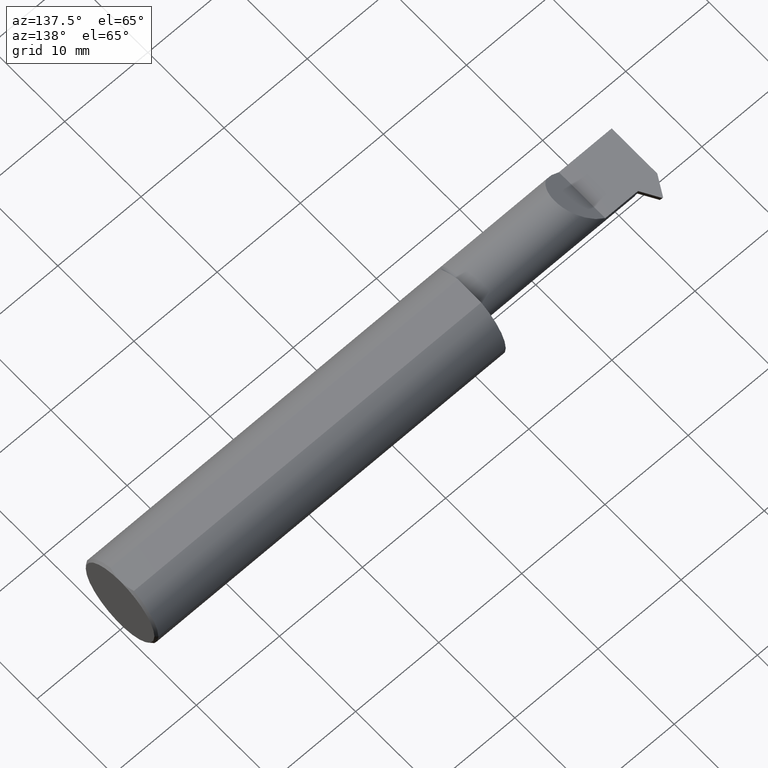
[diagram: clean part render]
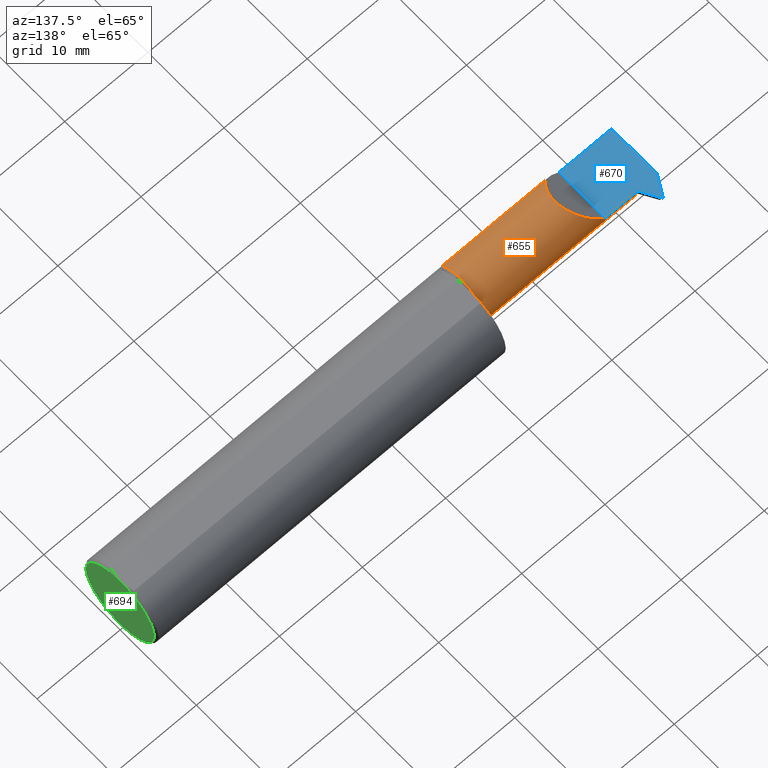
[diagram: same view with three faces highlighted in distinct colors, each labeled with its STEP entity id]
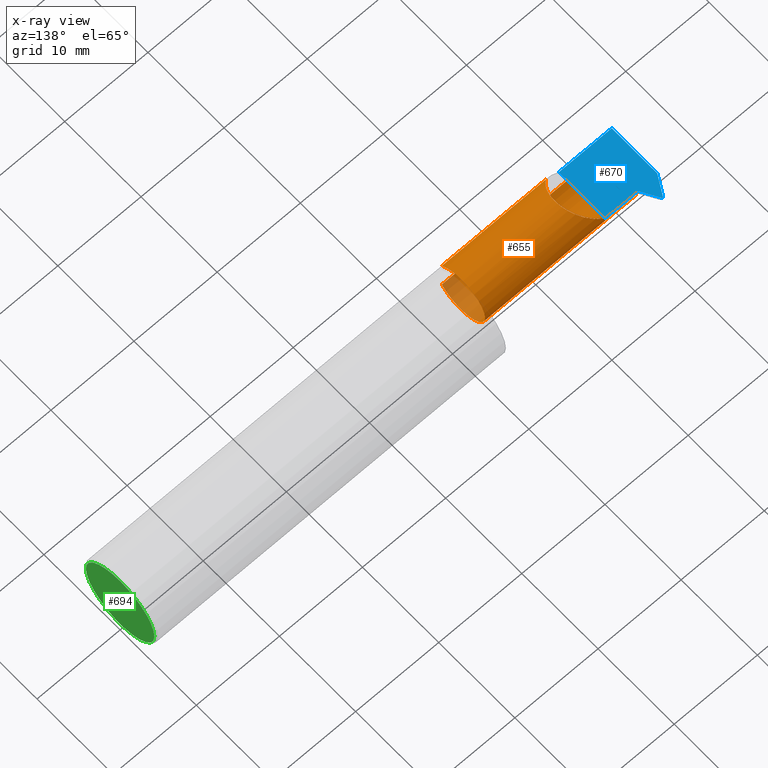
[diagram: x-ray of the same camera — body ghosted, the three highlighted faces saturated]
A machine part, auxiliary view with three faces highlighted in distinct colors.
The next image is the same camera in x-ray (body ghosted, the three faces saturated) — at least one of them is partly hidden behind the body in this view.
Their STEP definitions:

[orange] entity #655 — the highlighted cylindrical surface (edge-blend (fillet) strip) has radius 3.175 mm, axis along (-1, 0, -0).
#11 = EDGE_CURVE ( 'NONE', #196, #712, #334, .T. ) ;
#13 = DIRECTION ( 'NONE',  ( -1.000000000000000000, 7.807390513315893590E-17, -0.000000000000000000 ) ) ;
#17 = CARTESIAN_POINT ( 'NONE',  ( -2.399466679003209091, 0.05264999999999994684, 0.000000000000000000 ) ) ;
#77 = CARTESIAN_POINT ( 'NONE',  ( -2.396040671537939648, 0.05265000000000024521, -0.01683936468141946502 ) ) ;
#85 = EDGE_CURVE ( 'NONE', #137, #571, #839, .T. ) ;
#102 = DIRECTION ( 'NONE',  ( -1.000000000000000000, 7.807390513315893590E-17, -0.000000000000000000 ) ) ;
#107 = CARTESIAN_POINT ( 'NONE',  ( -2.500000000000000000, -0.03467546208265587931, -0.1191873701057065138 ) ) ;
#111 = ORIENTED_EDGE ( 'NONE', *, *, #85, .F. ) ;
#115 = ORIENTED_EDGE ( 'NONE', *, *, #353, .F. ) ;
#122 = ORIENTED_EDGE ( 'NONE', *, *, #344, .T. ) ;
#123 = FACE_OUTER_BOUND ( 'NONE', #687, .T. ) ;
#137 = VERTEX_POINT ( 'NONE', #483 ) ;
#146 = CARTESIAN_POINT ( 'NONE',  ( -2.250000000000000000, 0.05265000000000022440, 0.000000000000000000 ) ) ;
#148 = AXIS2_PLACEMENT_3D ( 'NONE', #384, #102, #779 ) ;
#164 = DIRECTION ( 'NONE',  ( -1.000000000000000000, 7.807390513315893590E-17, -0.000000000000000000 ) ) ;
#182 = LINE ( 'NONE', #728, #710 ) ;
#196 = VERTEX_POINT ( 'NONE', #17 ) ;
#198 = AXIS2_PLACEMENT_3D ( 'NONE', #736, #819, #257 ) ;
#210 = CARTESIAN_POINT ( 'NONE',  ( -2.389529785684763041, 0.04271310668155375856, -0.04884139106116385659 ) ) ;
#217 = VECTOR ( 'NONE', #448, 39.37007874015748143 ) ;
#219 = LINE ( 'NONE', #363, #595 ) ;
#234 = CARTESIAN_POINT ( 'NONE',  ( -2.399165208596790499, 0.04271310668155458429, -0.04884139106116149043 ) ) ;
#239 = EDGE_CURVE ( 'NONE', #267, #752, #436, .T. ) ;
#241 = CARTESIAN_POINT ( 'NONE',  ( -2.039733339501604625, -0.1707639599170687750, 0.07706940050007952958 ) ) ;
#257 = DIRECTION ( 'NONE',  ( 0.000000000000000000, -1.775701195881767246E-15, 1.000000000000000000 ) ) ;
#260 = ORIENTED_EDGE ( 'NONE', *, *, #496, .T. ) ;
#261 = CARTESIAN_POINT ( 'NONE',  ( -2.500000000000000000, -0.07235000000000005316, 0.000000000000000000 ) ) ;
#267 = VERTEX_POINT ( 'NONE', #834 ) ;
#275 = CARTESIAN_POINT ( 'NONE',  ( -2.399466679003209091, 0.05264999999999994684, 0.000000000000000000 ) ) ;
#303 = CARTESIAN_POINT ( 'NONE',  ( -2.500000000000000000, -0.07235000000000006704, 0.000000000000000000 ) ) ;
#307 = CARTESIAN_POINT ( 'NONE',  ( -2.250000000000000000, 0.05265000000000022440, 0.000000000000000000 ) ) ;
#317 = EDGE_CURVE ( 'NONE', #464, #571, #426, .T. ) ;
#334 =( BOUNDED_CURVE ( )  B_SPLINE_CURVE ( 3, ( #275, #77, #425, #210 ),
 .UNSPECIFIED., .F., .F. ) 
 B_SPLINE_CURVE_WITH_KNOTS ( ( 4, 4 ),
 ( 1.570796326794896780, 1.972222054753630660 ),
 .UNSPECIFIED. ) 
 CURVE ( )  GEOMETRIC_REPRESENTATION_ITEM ( )  RATIONAL_B_SPLINE_CURVE ( ( 1.000000000000000000, 0.9866164697472170619, 0.9866164697472170619, 1.000000000000000000 ) ) 
 REPRESENTATION_ITEM ( '' )  );
#344 = EDGE_CURVE ( 'NONE', #196, #464, #355, .T. ) ;
#351 = ORIENTED_EDGE ( 'NONE', *, *, #11, .F. ) ;
#353 = EDGE_CURVE ( 'NONE', #439, #731, #219, .T. ) ;
#355 = LINE ( 'NONE', #428, #735 ) ;
#359 = CARTESIAN_POINT ( 'NONE',  ( -2.060312847100502331, -0.08257136335451466247, 0.1896871528994956146 ) ) ;
#363 = CARTESIAN_POINT ( 'NONE',  ( -2.039733339501604625, -0.1707639599170687750, -0.07706940050007952958 ) ) ;
#378 = ORIENTED_EDGE ( 'NONE', *, *, #572, .T. ) ;
#384 = CARTESIAN_POINT ( 'NONE',  ( -1.680000000000000160, -0.07235000000000010867, 0.000000000000000000 ) ) ;
#389 = CIRCLE ( 'NONE', #503, 0.1250000000000000278 ) ;
#397 = ORIENTED_EDGE ( 'NONE', *, *, #617, .F. ) ;
#408 = CARTESIAN_POINT ( 'NONE',  ( -2.300000000000000266, -0.07235000000000015030, -0.1250000000000000000 ) ) ;
#425 = CARTESIAN_POINT ( 'NONE',  ( -2.392683442184507570, 0.04929277064656741730, -0.03334067414286177172 ) ) ;
#426 =( BOUNDED_CURVE ( )  B_SPLINE_CURVE ( 3, ( #146, #826, #359, #501 ),
 .UNSPECIFIED., .F., .T. ) 
 B_SPLINE_CURVE_WITH_KNOTS ( ( 4, 4 ),
 ( 1.570796326794896558, 4.048029203480146165 ),
 .UNSPECIFIED. ) 
 CURVE ( )  GEOMETRIC_REPRESENTATION_ITEM ( )  RATIONAL_B_SPLINE_CURVE ( ( 1.000000000000000000, 0.5507363490864389810, 0.5507363490864389810, 1.000000000000000000 ) ) 
 REPRESENTATION_ITEM ( '' )  );
#428 = CARTESIAN_POINT ( 'NONE',  ( -2.500000000000000000, 0.05265000000000022440, 0.000000000000000000 ) ) ;
#436 = CIRCLE ( 'NONE', #769, 0.1250000000000000278 ) ;
#439 = VERTEX_POINT ( 'NONE', #458 ) ;
#448 = DIRECTION ( 'NONE',  ( 1.000000000000000000, -7.807390513315893590E-17, 0.000000000000000000 ) ) ;
#458 = CARTESIAN_POINT ( 'NONE',  ( -2.500000000000000000, -0.1707639599170693301, -0.07706940050007840548 ) ) ;
#464 = VERTEX_POINT ( 'NONE', #307 ) ;
#468 = DIRECTION ( 'NONE',  ( 0.000000000000000000, -1.000000000000000000, 0.000000000000000000 ) ) ;
#474 = ORIENTED_EDGE ( 'NONE', *, *, #737, .T. ) ;
#483 = CARTESIAN_POINT ( 'NONE',  ( -1.680000000000000160, -0.1707639599170689693, 0.07706940050007969611 ) ) ;
#495 = VERTEX_POINT ( 'NONE', #852 ) ;
#496 = EDGE_CURVE ( 'NONE', #137, #731, #696, .T. ) ;
#499 = ORIENTED_EDGE ( 'NONE', *, *, #624, .F. ) ;
#501 = CARTESIAN_POINT ( 'NONE',  ( -2.172930599499919513, -0.1707639599170687472, 0.07706940050007969611 ) ) ;
#503 = AXIS2_PLACEMENT_3D ( 'NONE', #303, #568, #468 ) ;
#505 = CARTESIAN_POINT ( 'NONE',  ( -2.172930599499919513, -0.1707639599170687472, 0.07706940050007969611 ) ) ;
#514 = LINE ( 'NONE', #107, #217 ) ;
#521 = AXIS2_PLACEMENT_3D ( 'NONE', #261, #874, #804 ) ;
#542 = CARTESIAN_POINT ( 'NONE',  ( -2.389529785684763041, 0.04271310668155375856, -0.04884139106116385659 ) ) ;
#555 = DIRECTION ( 'NONE',  ( 0.000000000000000000, -1.000000000000000000, 0.000000000000000000 ) ) ;
#566 = CARTESIAN_POINT ( 'NONE',  ( -2.399466679003209091, -0.07235000000000015030, -0.1250000000000000000 ) ) ;
#567 = VERTEX_POINT ( 'NONE', #234 ) ;
#568 = DIRECTION ( 'NONE',  ( 1.000000000000000000, 1.553500558300393113E-17, -0.000000000000000000 ) ) ;
#571 = VERTEX_POINT ( 'NONE', #505 ) ;
#572 = EDGE_CURVE ( 'NONE', #439, #763, #389, .T. ) ;
#578 = CARTESIAN_POINT ( 'NONE',  ( -1.680000000000000160, -0.1707639599170690248, -0.07706940050007969611 ) ) ;
#592 = DIRECTION ( 'NONE',  ( -1.000000000000000000, 7.807390513315893590E-17, -0.000000000000000000 ) ) ;
#595 = VECTOR ( 'NONE', #744, 39.37007874015748143 ) ;
#598 = VECTOR ( 'NONE', #164, 39.37007874015748143 ) ;
#604 = DIRECTION ( 'NONE',  ( -1.000000000000000000, -1.553500558300393113E-17, -0.000000000000000000 ) ) ;
#617 = EDGE_CURVE ( 'NONE', #752, #763, #860, .T. ) ;
#624 = EDGE_CURVE ( 'NONE', #712, #567, #182, .T. ) ;
#655 = ADVANCED_FACE ( 'NONE', ( #123 ), #870, .T. ) ;
#683 = VECTOR ( 'NONE', #604, 39.37007874015748143 ) ;
#687 = EDGE_LOOP ( 'NONE', ( #474, #726, #499, #351, #122, #764, #111, #260, #115, #378, #397, #716 ) ) ;
#696 = CIRCLE ( 'NONE', #148, 0.1250000000000004996 ) ;
#710 = VECTOR ( 'NONE', #592, 39.37007874015748143 ) ;
#712 = VERTEX_POINT ( 'NONE', #542 ) ;
#716 = ORIENTED_EDGE ( 'NONE', *, *, #239, .F. ) ;
#721 = EDGE_CURVE ( 'NONE', #495, #567, #847, .T. ) ;
#726 = ORIENTED_EDGE ( 'NONE', *, *, #721, .T. ) ;
#728 = CARTESIAN_POINT ( 'NONE',  ( -2.500000000000001332, 0.04271310668155336304, -0.04884139106116379414 ) ) ;
#731 = VERTEX_POINT ( 'NONE', #578 ) ;
#735 = VECTOR ( 'NONE', #814, 39.37007874015748143 ) ;
#736 = CARTESIAN_POINT ( 'NONE',  ( -2.399165208596790499, -0.07235000000000005316, 0.000000000000000000 ) ) ;
#737 = EDGE_CURVE ( 'NONE', #267, #495, #514, .T. ) ;
#744 = DIRECTION ( 'NONE',  ( 1.000000000000000000, -7.807390513315893590E-17, 0.000000000000000000 ) ) ;
#752 = VERTEX_POINT ( 'NONE', #566 ) ;
#763 = VERTEX_POINT ( 'NONE', #849 ) ;
#764 = ORIENTED_EDGE ( 'NONE', *, *, #317, .T. ) ;
#769 = AXIS2_PLACEMENT_3D ( 'NONE', #813, #13, #555 ) ;
#779 = DIRECTION ( 'NONE',  ( 0.000000000000000000, -1.000000000000000000, 0.000000000000000000 ) ) ;
#804 = DIRECTION ( 'NONE',  ( 0.000000000000000000, -1.000000000000000000, 0.000000000000000000 ) ) ;
#813 = CARTESIAN_POINT ( 'NONE',  ( -2.399466679003209091, -0.07235000000000005316, 0.000000000000000000 ) ) ;
#814 = DIRECTION ( 'NONE',  ( 1.000000000000000000, -7.807390513315893590E-17, 0.000000000000000000 ) ) ;
#819 = DIRECTION ( 'NONE',  ( 1.000000000000000000, -0.000000000000000000, 0.000000000000000000 ) ) ;
#826 = CARTESIAN_POINT ( 'NONE',  ( -2.106959123870335571, 0.05265000000000018970, 0.1430408761296629028 ) ) ;
#834 = CARTESIAN_POINT ( 'NONE',  ( -2.399466679003209091, -0.03467546208265526175, -0.1191873701057060558 ) ) ;
#839 = LINE ( 'NONE', #241, #598 ) ;
#847 = CIRCLE ( 'NONE', #198, 0.1250000000000002776 ) ;
#849 = CARTESIAN_POINT ( 'NONE',  ( -2.500000000000000000, -0.07235000000000015030, -0.1250000000000000000 ) ) ;
#852 = CARTESIAN_POINT ( 'NONE',  ( -2.399165208596790499, -0.03467546208265583074, -0.1191873701057066248 ) ) ;
#860 = LINE ( 'NONE', #408, #683 ) ;
#870 = CYLINDRICAL_SURFACE ( 'NONE', #521, 0.1250000000000002776 ) ;
#874 = DIRECTION ( 'NONE',  ( -1.000000000000000000, 7.807390513315893590E-17, -0.000000000000000000 ) ) ;

[blue] entity #670 — the highlighted planar face has unit normal (0, 0, -1).
#6 = VECTOR ( 'NONE', #79, 39.37007874015748143 ) ;
#17 = CARTESIAN_POINT ( 'NONE',  ( -2.399466679003209091, 0.05264999999999994684, 0.000000000000000000 ) ) ;
#27 = CARTESIAN_POINT ( 'NONE',  ( -2.250000000000000000, -0.2500000000000000000, 0.000000000000000000 ) ) ;
#36 = ORIENTED_EDGE ( 'NONE', *, *, #470, .T. ) ;
#41 = CARTESIAN_POINT ( 'NONE',  ( -2.500000000000000000, 6.123233995736767268E-17, 0.000000000000000000 ) ) ;
#54 = PLANE ( 'NONE',  #533 ) ;
#60 = EDGE_CURVE ( 'NONE', #63, #547, #147, .T. ) ;
#63 = VERTEX_POINT ( 'NONE', #508 ) ;
#66 = ORIENTED_EDGE ( 'NONE', *, *, #810, .F. ) ;
#70 = ORIENTED_EDGE ( 'NONE', *, *, #171, .F. ) ;
#79 = DIRECTION ( 'NONE',  ( 1.000000000000000000, 1.224646799147352961E-16, -0.000000000000000000 ) ) ;
#82 = VECTOR ( 'NONE', #377, 39.37007874015748854 ) ;
#124 = VECTOR ( 'NONE', #379, 39.37007874015748143 ) ;
#133 = CARTESIAN_POINT ( 'NONE',  ( -2.500000000000000000, -0.1873499999999999055, 0.000000000000000000 ) ) ;
#147 = LINE ( 'NONE', #157, #639 ) ;
#157 = CARTESIAN_POINT ( 'NONE',  ( -1.895948109502243684, 1.094626151390651891, 0.000000000000000000 ) ) ;
#171 = EDGE_CURVE ( 'NONE', #559, #196, #493, .T. ) ;
#174 = LINE ( 'NONE', #570, #82 ) ;
#196 = VERTEX_POINT ( 'NONE', #17 ) ;
#203 = CARTESIAN_POINT ( 'NONE',  ( -2.500000000000000000, -0.2500000000000000000, 0.000000000000000000 ) ) ;
#228 = EDGE_CURVE ( 'NONE', #678, #618, #343, .T. ) ;
#265 = DIRECTION ( 'NONE',  ( -1.000000000000000000, 0.000000000000000000, -0.000000000000000000 ) ) ;
#271 = EDGE_LOOP ( 'NONE', ( #790, #872, #36, #279, #647, #417, #70, #66 ) ) ;
#279 = ORIENTED_EDGE ( 'NONE', *, *, #228, .T. ) ;
#307 = CARTESIAN_POINT ( 'NONE',  ( -2.250000000000000000, 0.05265000000000022440, 0.000000000000000000 ) ) ;
#329 = EDGE_CURVE ( 'NONE', #618, #464, #766, .T. ) ;
#343 = LINE ( 'NONE', #809, #6 ) ;
#344 = EDGE_CURVE ( 'NONE', #196, #464, #355, .T. ) ;
#355 = LINE ( 'NONE', #428, #735 ) ;
#360 = VECTOR ( 'NONE', #488, 39.37007874015748143 ) ;
#368 = CARTESIAN_POINT ( 'NONE',  ( -2.449500000000000899, 0.1306500000000000439, 0.000000000000000000 ) ) ;
#377 = DIRECTION ( 'NONE',  ( 0.5000000000000027756, -0.8660254037844370423, 0.000000000000000000 ) ) ;
#379 = DIRECTION ( 'NONE',  ( 1.224646799147352961E-16, -1.000000000000000000, 0.000000000000000000 ) ) ;
#394 = DIRECTION ( 'NONE',  ( 0.000000000000000000, 0.000000000000000000, -1.000000000000000000 ) ) ;
#417 = ORIENTED_EDGE ( 'NONE', *, *, #344, .F. ) ;
#428 = CARTESIAN_POINT ( 'NONE',  ( -2.500000000000000000, 0.05265000000000022440, 0.000000000000000000 ) ) ;
#447 = DIRECTION ( 'NONE',  ( 0.4999999999999895084, 0.8660254037844445918, 0.000000000000000000 ) ) ;
#455 = DIRECTION ( 'NONE',  ( 1.000000000000000000, -7.807390513315893590E-17, 0.000000000000000000 ) ) ;
#461 = CARTESIAN_POINT ( 'NONE',  ( -2.452500000000000124, 0.1306499999999999884, 0.000000000000000000 ) ) ;
#464 = VERTEX_POINT ( 'NONE', #307 ) ;
#470 = EDGE_CURVE ( 'NONE', #63, #678, #714, .T. ) ;
#488 = DIRECTION ( 'NONE',  ( 1.000000000000000000, 7.683322482180613419E-15, 0.000000000000000000 ) ) ;
#493 = LINE ( 'NONE', #625, #360 ) ;
#508 = CARTESIAN_POINT ( 'NONE',  ( -2.500000000000000444, 0.04837758664047484003, 0.000000000000000000 ) ) ;
#533 = AXIS2_PLACEMENT_3D ( 'NONE', #203, #394, #265 ) ;
#534 = CARTESIAN_POINT ( 'NONE',  ( -2.250000000000000000, -0.1873499999999998500, 0.000000000000000000 ) ) ;
#540 = VERTEX_POINT ( 'NONE', #368 ) ;
#547 = VERTEX_POINT ( 'NONE', #461 ) ;
#559 = VERTEX_POINT ( 'NONE', #654 ) ;
#570 = CARTESIAN_POINT ( 'NONE',  ( -1.780551890497774625, -1.028002113284995023, 0.000000000000000000 ) ) ;
#618 = VERTEX_POINT ( 'NONE', #534 ) ;
#625 = CARTESIAN_POINT ( 'NONE',  ( -4.045269286869511293E-16, 0.05265000000001845981, 0.000000000000000000 ) ) ;
#639 = VECTOR ( 'NONE', #447, 39.37007874015748854 ) ;
#647 = ORIENTED_EDGE ( 'NONE', *, *, #329, .T. ) ;
#654 = CARTESIAN_POINT ( 'NONE',  ( -2.404466679003209428, 0.05264999999999991215, 0.000000000000000000 ) ) ;
#660 = FACE_OUTER_BOUND ( 'NONE', #271, .T. ) ;
#669 = VECTOR ( 'NONE', #831, 39.37007874015748143 ) ;
#670 = ADVANCED_FACE ( 'NONE', ( #660 ), #54, .F. ) ;
#678 = VERTEX_POINT ( 'NONE', #133 ) ;
#714 = LINE ( 'NONE', #41, #124 ) ;
#735 = VECTOR ( 'NONE', #814, 39.37007874015748143 ) ;
#757 = EDGE_CURVE ( 'NONE', #547, #540, #836, .T. ) ;
#766 = LINE ( 'NONE', #27, #669 ) ;
#776 = CARTESIAN_POINT ( 'NONE',  ( -2.500000000000000000, 0.1306500000000000716, 0.000000000000000000 ) ) ;
#790 = ORIENTED_EDGE ( 'NONE', *, *, #757, .F. ) ;
#809 = CARTESIAN_POINT ( 'NONE',  ( -2.500000000000000000, -0.1873499999999998777, 0.000000000000000000 ) ) ;
#810 = EDGE_CURVE ( 'NONE', #540, #559, #174, .T. ) ;
#812 = VECTOR ( 'NONE', #455, 39.37007874015748143 ) ;
#814 = DIRECTION ( 'NONE',  ( 1.000000000000000000, -7.807390513315893590E-17, 0.000000000000000000 ) ) ;
#831 = DIRECTION ( 'NONE',  ( -0.000000000000000000, 1.000000000000000000, -0.000000000000000000 ) ) ;
#836 = LINE ( 'NONE', #776, #812 ) ;
#872 = ORIENTED_EDGE ( 'NONE', *, *, #60, .F. ) ;

[green] entity #694 — the highlighted planar face has unit normal (1, 0, -0).
#57 = VERTEX_POINT ( 'NONE', #772 ) ;
#61 = AXIS2_PLACEMENT_3D ( 'NONE', #245, #525, #312 ) ;
#64 = PLANE ( 'NONE',  #748 ) ;
#89 = DIRECTION ( 'NONE',  ( -1.224646799147352961E-16, 1.000000000000000000, 0.000000000000000000 ) ) ;
#90 = CIRCLE ( 'NONE', #116, 0.1773500000000004795 ) ;
#96 = EDGE_CURVE ( 'NONE', #57, #556, #90, .T. ) ;
#98 = CARTESIAN_POINT ( 'NONE',  ( 3.319098987389115832E-17, -0.1773500000000000909, 0.000000000000000000 ) ) ;
#116 = AXIS2_PLACEMENT_3D ( 'NONE', #376, #641, #89 ) ;
#141 = ORIENTED_EDGE ( 'NONE', *, *, #96, .T. ) ;
#145 = CARTESIAN_POINT ( 'NONE',  ( -1.024723209186555973E-17, 0.1773500000000008403, 2.233143438245201271E-17 ) ) ;
#175 = EDGE_LOOP ( 'NONE', ( #141, #549, #450 ) ) ;
#179 = VERTEX_POINT ( 'NONE', #145 ) ;
#188 = CARTESIAN_POINT ( 'NONE',  ( 1.147187889101284552E-17, 1.404899976408496659E-33, 0.000000000000000000 ) ) ;
#199 = CIRCLE ( 'NONE', #371, 0.1773500000000004795 ) ;
#245 = CARTESIAN_POINT ( 'NONE',  ( 1.147187889101280084E-17, 3.673940397442058882E-16, 0.000000000000000000 ) ) ;
#269 = DIRECTION ( 'NONE',  ( -1.224646799147352961E-16, 1.000000000000000000, 0.000000000000000000 ) ) ;
#308 = EDGE_CURVE ( 'NONE', #179, #57, #199, .T. ) ;
#312 = DIRECTION ( 'NONE',  ( -1.224646799147352961E-16, 1.000000000000000000, 0.000000000000000000 ) ) ;
#333 = DIRECTION ( 'NONE',  ( 1.000000000000000000, 1.224646799147352961E-16, -0.000000000000000000 ) ) ;
#371 = AXIS2_PLACEMENT_3D ( 'NONE', #761, #485, #700 ) ;
#376 = CARTESIAN_POINT ( 'NONE',  ( 1.147187889101280084E-17, 3.673940397442058882E-16, 0.000000000000000000 ) ) ;
#423 = EDGE_CURVE ( 'NONE', #556, #179, #708, .T. ) ;
#450 = ORIENTED_EDGE ( 'NONE', *, *, #308, .T. ) ;
#485 = DIRECTION ( 'NONE',  ( 1.000000000000000000, 1.224646799147352961E-16, -0.000000000000000000 ) ) ;
#525 = DIRECTION ( 'NONE',  ( 1.000000000000000000, 1.224646799147352961E-16, -0.000000000000000000 ) ) ;
#549 = ORIENTED_EDGE ( 'NONE', *, *, #423, .T. ) ;
#556 = VERTEX_POINT ( 'NONE', #98 ) ;
#601 = FACE_OUTER_BOUND ( 'NONE', #175, .T. ) ;
#641 = DIRECTION ( 'NONE',  ( 1.000000000000000000, 1.224646799147352961E-16, -0.000000000000000000 ) ) ;
#694 = ADVANCED_FACE ( 'NONE', ( #601 ), #64, .T. ) ;
#700 = DIRECTION ( 'NONE',  ( -1.224646799147352961E-16, 1.000000000000000000, 0.000000000000000000 ) ) ;
#708 = CIRCLE ( 'NONE', #61, 0.1773500000000004795 ) ;
#748 = AXIS2_PLACEMENT_3D ( 'NONE', #188, #333, #269 ) ;
#761 = CARTESIAN_POINT ( 'NONE',  ( 1.147187889101280084E-17, 3.673940397442058882E-16, 0.000000000000000000 ) ) ;
#772 = CARTESIAN_POINT ( 'NONE',  ( -4.969808731120574713E-33, 3.199103279729614038E-16, 0.1773500000000000909 ) ) ;